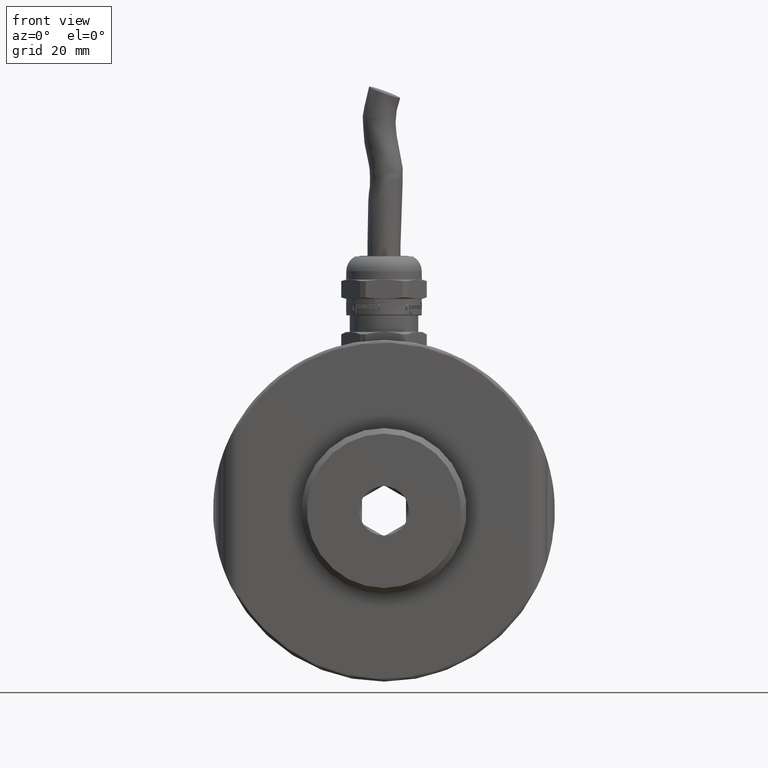
[diagram: clean part render]
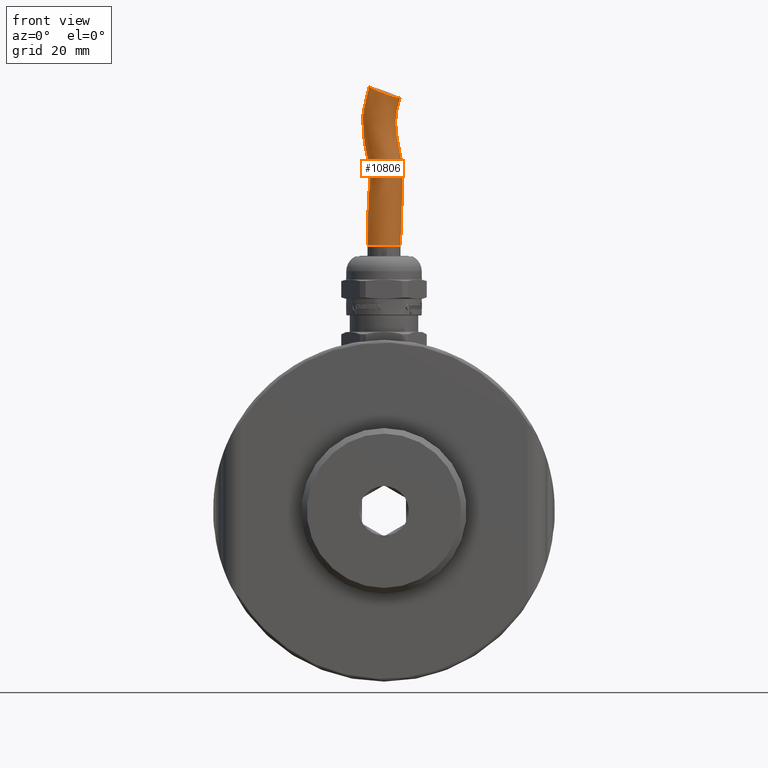
[diagram: same view with one face highlighted and labeled with its STEP entity id]
A machine part, front view. The second image highlights one B-rep face of the part: STEP entity #10806.
In plain terms, the highlighted face is a freeform B-spline surface patch.
Its self-contained STEP definition (entity closure, byte-faithful):
#36 = CARTESIAN_POINT ( 'NONE',  ( -2.903830114338532997, 24.46975126807920375, 55.14428429915418661 ) ) ;
#118 = CARTESIAN_POINT ( 'NONE',  ( 2.569365126468337479, 18.55810941434605610, 66.59545027553072316 ) ) ;
#282 = CARTESIAN_POINT ( 'NONE',  ( -3.339997727362602031, 12.54086365373877676, 65.63398565255626238 ) ) ;
#359 = CARTESIAN_POINT ( 'NONE',  ( -2.604847776709179996, 12.34979383744383519, 62.16778000623445166 ) ) ;
#556 = CARTESIAN_POINT ( 'NONE',  ( 0.000000000000000000, 18.49999999999999645, 48.14999999999999858 ) ) ;
#563 = CARTESIAN_POINT ( 'NONE',  ( 2.569365126468337479, 18.55810941434605610, 66.59545027553072316 ) ) ;
#906 = CARTESIAN_POINT ( 'NONE',  ( 3.008635434925755803, 18.49731427774121784, 50.92092628859793990 ) ) ;
#992 = CARTESIAN_POINT ( 'NONE',  ( -3.762828667064136212, 18.74861960645206693, 73.32154770902297969 ) ) ;
#1083 = CARTESIAN_POINT ( 'NONE',  ( -2.549080236822379497, 24.35222530343147085, 60.28802535873476387 ) ) ;
#1169 = CARTESIAN_POINT ( 'NONE',  ( -3.366178226718186561, 18.67905449595852119, 75.16794173144839419 ) ) ;
#1259 = CARTESIAN_POINT ( 'NONE',  ( -2.734500941808824415, 18.41536278443324903, 58.20234532871489108 ) ) ;
#1352 = CARTESIAN_POINT ( 'NONE',  ( -2.599531172335310725, 24.37028764862188979, 59.81173694803572261 ) ) ;
#1519 = CARTESIAN_POINT ( 'NONE',  ( -3.796639429380852970, 12.74876810475310762, 73.17733781232347212 ) ) ;
#1607 = CARTESIAN_POINT ( 'NONE',  ( 3.189169968719720583, 18.43996153861665732, 56.93532865758772488 ) ) ;
#1686 = CARTESIAN_POINT ( 'NONE',  ( 3.411834711053278735, 12.36579881338014175, 59.29110284103984441 ) ) ;
#1766 = CARTESIAN_POINT ( 'NONE',  ( 3.008605236201000732, 12.49732353844867916, 50.90315231865942991 ) ) ;
#2318 = CARTESIAN_POINT ( 'NONE',  ( -2.991234127564034395, 24.49727424418735211, 50.99558993031758547 ) ) ;
#2401 = CARTESIAN_POINT ( 'NONE',  ( -2.944319678989260503, 12.48251452659857463, 53.72342952421470130 ) ) ;
#2494 = CARTESIAN_POINT ( 'NONE',  ( -2.506780083267620807, 18.33223899249863820, 61.14287344650275458 ) ) ;
#2587 = CARTESIAN_POINT ( 'NONE',  ( -2.924389877176898800, 24.43456751985474895, 63.67405535838248198 ) ) ;
#2666 = CARTESIAN_POINT ( 'NONE',  ( -2.566771991178263601, 24.34445096690148347, 61.77493086334711592 ) ) ;
#2704 = CIRCLE ( 'NONE', #11115, 3.000000000000002220 ) ;
#2922 = CARTESIAN_POINT ( 'NONE',  ( 3.338390070067831061, 12.35563590209330620, 63.02906739840678796 ) ) ;
#2953 = CARTESIAN_POINT ( 'NONE',  ( 2.932955660895778305, 18.57912090347235790, 74.91012065054047753 ) ) ;
#3009 = CARTESIAN_POINT ( 'NONE',  ( -2.503732175934467730, 12.32991677934335684, 61.18469412890193126 ) ) ;
#3027 = DIRECTION ( 'NONE',  ( 0.9384804351222022500, 0.006333316636610015864, -0.3452743286044046012 ) ) ;
#3275 = CARTESIAN_POINT ( 'NONE',  ( 2.046174102872841516, 18.72565692792501579, 70.02266191948497465 ) ) ;
#3352 = AXIS2_PLACEMENT_3D ( 'NONE', #556, #15345, #12702 ) ;
#3631 = CARTESIAN_POINT ( 'NONE',  ( 3.360863145722507550, 18.38320763888510712, 59.01356141288122359 ) ) ;
#3713 = CARTESIAN_POINT ( 'NONE',  ( -3.000000000000000888, 12.50000000000000178, 49.50070937886976452 ) ) ;
#3796 = CARTESIAN_POINT ( 'NONE',  ( 2.189115715508525017, 24.67788480708955845, 68.64803177603981510 ) ) ;
#3896 = CARTESIAN_POINT ( 'NONE',  ( -2.797291783099526530, 24.43565372037398831, 57.40888809365709022 ) ) ;
#3981 = CARTESIAN_POINT ( 'NONE',  ( -3.235120701638280583, 24.51791793654945550, 64.89135188746271865 ) ) ;
#4063 = CARTESIAN_POINT ( 'NONE',  ( 3.054563772162934843, 18.48286530445611220, 53.62275385525193627 ) ) ;
#4235 = CARTESIAN_POINT ( 'NONE',  ( 3.000000000000000000, 18.49999999999999645, 48.14999999999999858 ) ) ;
#4317 = CARTESIAN_POINT ( 'NONE',  ( 3.420954118809231392, 18.36264572121881855, 59.50129635697686581 ) ) ;
#4403 = CARTESIAN_POINT ( 'NONE',  ( 2.046174102872841516, 18.72565692792501579, 70.02266191948497465 ) ) ;
#4689 = CARTESIAN_POINT ( 'NONE',  ( 3.420954118809231392, 18.36264572121881855, 59.50129635697686581 ) ) ;
#4772 = CARTESIAN_POINT ( 'NONE',  ( 3.092172212544396448, 18.47100507555014204, 54.87353016685425189 ) ) ;
#5042 = CARTESIAN_POINT ( 'NONE',  ( -3.000000000000000888, 12.50000000000000178, 48.14999999999999858 ) ) ;
#5130 = CARTESIAN_POINT ( 'NONE',  ( -2.697926949837439636, 18.54112100365269811, 76.98176662216690147 ) ) ;
#5214 = CARTESIAN_POINT ( 'NONE',  ( -2.991264326288790354, 18.49728350489599649, 50.97781596038026919 ) ) ;
#5309 = CARTESIAN_POINT ( 'NONE',  ( -2.999999999999999112, 24.49999999999999645, 48.14999999999999858 ) ) ;
#5329 = ORIENTED_EDGE ( 'NONE', *, *, #8449, .F. ) ;
#5335 =( BOUNDED_SURFACE ( )  B_SPLINE_SURFACE ( 3, 3, ( 
 ( #7584, #12965, #906, #11633, #4772, #10315, #15712, #3631, #4689, #7235, #15353, #12617, #563, #7320, #3275, #8636, #14032, #6436 ),
 ( #16063, #10482, #14463, #14737, #10675, #10764, #11728, #15796, #5391, #6611, #17111, #16145, #10395, #3796, #11904, #15881, #9163, #11817 ),
 ( #5309, #17201, #2318, #6704, #36, #3896, #9256, #1352, #1083, #17384, #2666, #2587, #3981, #9074, #12084, #13328, #8993, #7764 ),
 ( #6343, #14559, #5214, #8028, #9344, #14650, #1259, #11998, #13414, #2494, #13239, #7854, #14386, #7669, #13055, #992, #1169, #5130 ),
 ( #5042, #3713, #6524, #2401, #13148, #17291, #10581, #15977, #7946, #3009, #359, #5556, #282, #13750, #5633, #1519, #6957, #6791 ),
 ( #12422, #9513, #1766, #7119, #14915, #6869, #11008, #11085, #1686, #16483, #2922, #16315, #12339, #8369, #16400, #5711, #7038, #14830 ),
 ( #4235, #11177, #12502, #4063, #15084, #1607, #10930, #12175, #4317, #9600, #12256, #13833, #118, #9675, #4403, #14999, #9764, #15164 ) ),
 .UNSPECIFIED., .T., .F., .T. ) 
 B_SPLINE_SURFACE_WITH_KNOTS ( ( 4, 3, 4 ),
 ( 4, 2, 2, 2, 2, 2, 2, 2, 4 ),
 ( 0.000000000000000000, 0.5000000000000000000, 1.000000000000000000 ),
 ( 0.3998515034732242346, 0.4475514641980031794, 0.4952514249227820686, 0.5429513856475609579, 0.5906513463723398472, 0.6929885097792549686, 0.7953256731861699791, 0.8976628365930849895, 1.000000000000000000 ),
 .UNSPECIFIED. ) 
 GEOMETRIC_REPRESENTATION_ITEM ( )  RATIONAL_B_SPLINE_SURFACE ( (
 ( 1.000000000000000000, 1.000000000000000000, 1.000000000000000000, 1.000000000000000000, 1.000000000000000000, 1.000000000000000000, 1.000000000000000000, 1.000000000000000000, 1.000000000000000000, 1.000000000000000000, 1.000000000000000000, 1.000000000000000000, 1.000000000000000000, 1.000000000000000000, 1.000000000000000000, 1.000000000000000000, 1.000000000000000000, 1.000000000000000000),
 ( 0.3333333333333333703, 0.3333333333333333703, 0.3333333333333333703, 0.3333333333333333703, 0.3333333333333333703, 0.3333333333333333703, 0.3333333333333333703, 0.3333333333333333703, 0.3333333333333333703, 0.3333333333333333703, 0.3333333333333333703, 0.3333333333333333703, 0.3333333333333333703, 0.3333333333333333703, 0.3333333333333333703, 0.3333333333333333703, 0.3333333333333333703, 0.3333333333333333703),
 ( 0.3333333333333333703, 0.3333333333333333703, 0.3333333333333333703, 0.3333333333333333703, 0.3333333333333333703, 0.3333333333333333703, 0.3333333333333333703, 0.3333333333333333703, 0.3333333333333333703, 0.3333333333333333703, 0.3333333333333333703, 0.3333333333333333703, 0.3333333333333333703, 0.3333333333333333703, 0.3333333333333333703, 0.3333333333333333703, 0.3333333333333333703, 0.3333333333333333703),
 ( 1.000000000000000000, 1.000000000000000000, 1.000000000000000000, 1.000000000000000000, 1.000000000000000000, 1.000000000000000000, 1.000000000000000000, 1.000000000000000000, 1.000000000000000000, 1.000000000000000000, 1.000000000000000000, 1.000000000000000000, 1.000000000000000000, 1.000000000000000000, 1.000000000000000000, 1.000000000000000000, 1.000000000000000000, 1.000000000000000000),
 ( 0.3333333333333333703, 0.3333333333333333703, 0.3333333333333333703, 0.3333333333333333703, 0.3333333333333333703, 0.3333333333333333703, 0.3333333333333333703, 0.3333333333333333703, 0.3333333333333333703, 0.3333333333333333703, 0.3333333333333333703, 0.3333333333333333703, 0.3333333333333333703, 0.3333333333333333703, 0.3333333333333333703, 0.3333333333333333703, 0.3333333333333333703, 0.3333333333333333703),
 ( 0.3333333333333333703, 0.3333333333333333703, 0.3333333333333333703, 0.3333333333333333703, 0.3333333333333333703, 0.3333333333333333703, 0.3333333333333333703, 0.3333333333333333703, 0.3333333333333333703, 0.3333333333333333703, 0.3333333333333333703, 0.3333333333333333703, 0.3333333333333333703, 0.3333333333333333703, 0.3333333333333333703, 0.3333333333333333703, 0.3333333333333333703, 0.3333333333333333703),
 ( 1.000000000000000000, 1.000000000000000000, 1.000000000000000000, 1.000000000000000000, 1.000000000000000000, 1.000000000000000000, 1.000000000000000000, 1.000000000000000000, 1.000000000000000000, 1.000000000000000000, 1.000000000000000000, 1.000000000000000000, 1.000000000000000000, 1.000000000000000000, 1.000000000000000000, 1.000000000000000000, 1.000000000000000000, 1.000000000000000000) ) ) 
 REPRESENTATION_ITEM ( '' )  SURFACE ( )  );
#5391 = CARTESIAN_POINT ( 'NONE',  ( 3.430073526565184494, 24.35949262905750246, 59.71148987291388721 ) ) ;
#5556 = CARTESIAN_POINT ( 'NONE',  ( -3.023845120533942943, 12.45538292392453528, 64.39296074871980124 ) ) ;
#5633 = CARTESIAN_POINT ( 'NONE',  ( -3.995783267977215392, 12.75096577211925997, 69.92877726191048282 ) ) ;
#5711 = CARTESIAN_POINT ( 'NONE',  ( 2.155279033736602567, 12.72424745320662254, 72.21004561773966657 ) ) ;
#5868 = EDGE_CURVE ( 'NONE', #16354, #16354, #8679, .T. ) ;
#6147 = EDGE_LOOP ( 'NONE', ( #5329 ) ) ;
#6195 = ORIENTED_EDGE ( 'NONE', *, *, #5868, .T. ) ;
#6343 = CARTESIAN_POINT ( 'NONE',  ( -3.000000000000000000, 18.49999999999999645, 48.14999999999999858 ) ) ;
#6436 = CARTESIAN_POINT ( 'NONE',  ( 2.932955660895778749, 18.57912090347235790, 74.91012065054047753 ) ) ;
#6524 = CARTESIAN_POINT ( 'NONE',  ( -2.991294525013547645, 12.49729276560464619, 50.96004199044293870 ) ) ;
#6611 = CARTESIAN_POINT ( 'NONE',  ( 3.512942654392507080, 24.32220074713968216, 61.42794410546036943 ) ) ;
#6704 = CARTESIAN_POINT ( 'NONE',  ( -2.943286492275122068, 24.48218993442644376, 53.81620983001947423 ) ) ;
#6791 = CARTESIAN_POINT ( 'NONE',  ( -2.809811777926213949, 12.55645898189082388, 76.56787983749667603 ) ) ;
#6869 = CARTESIAN_POINT ( 'NONE',  ( 3.185846419142304597, 12.44101915547719805, 56.81994415220387395 ) ) ;
#6957 = CARTESIAN_POINT ( 'NONE',  ( -3.434251513213695262, 12.68534935051277657, 74.87297198699002365 ) ) ;
#7038 = CARTESIAN_POINT ( 'NONE',  ( 2.375043972078265231, 12.68652311656732579, 73.28558952653037295 ) ) ;
#7119 = CARTESIAN_POINT ( 'NONE',  ( 3.054047178805867180, 12.48302760054337135, 53.57636370235073997 ) ) ;
#7235 = CARTESIAN_POINT ( 'NONE',  ( 3.515990561725885311, 18.31987853398349131, 61.46976478785956743 ) ) ;
#7320 = CARTESIAN_POINT ( 'NONE',  ( 2.156220506812468685, 18.68344767817065488, 68.91018584947316583 ) ) ;
#7584 = CARTESIAN_POINT ( 'NONE',  ( 3.000000000000000000, 18.49999999999999645, 48.14999999999999858 ) ) ;
#7669 = CARTESIAN_POINT ( 'NONE',  ( -3.800388309089657302, 18.68490534966494820, 68.13590988253615421 ) ) ;
#7764 = CARTESIAN_POINT ( 'NONE',  ( -2.586042121748666212, 24.52578302541457234, 77.39565340683711270 ) ) ;
#7854 = CARTESIAN_POINT ( 'NONE',  ( -2.974117498855420649, 18.44497522188963856, 64.03350805355114517 ) ) ;
#7946 = CARTESIAN_POINT ( 'NONE',  ( -2.567319052334078755, 12.35853148775326638, 59.86763832686072817 ) ) ;
#8028 = CARTESIAN_POINT ( 'NONE',  ( -2.943803085632191063, 18.48235223051250387, 53.76981967711708421 ) ) ;
#8369 = CARTESIAN_POINT ( 'NONE',  ( 2.123325298116413240, 12.68901054925175842, 69.17233992290650235 ) ) ;
#8449 = EDGE_CURVE ( 'NONE', #15034, #15034, #2704, .T. ) ;
#8636 = CARTESIAN_POINT ( 'NONE',  ( 2.189089796053953929, 18.72409895490685727, 72.35425551443917414 ) ) ;
#8679 = CIRCLE ( 'NONE', #3352, 3.000000000000000000 ) ;
#8993 = CARTESIAN_POINT ( 'NONE',  ( -3.298104940222678305, 24.67275964140426936, 75.46291147590673631 ) ) ;
#9074 = CARTESIAN_POINT ( 'NONE',  ( -3.767493100393600081, 24.67934247858499575, 67.87375580910280348 ) ) ;
#9163 = CARTESIAN_POINT ( 'NONE',  ( 2.511190545065274282, 24.67393340747046793, 73.87552901542375139 ) ) ;
#9256 = CARTESIAN_POINT ( 'NONE',  ( -2.728769246174869600, 24.41352868903274143, 58.35294089402844264 ) ) ;
#9344 = CARTESIAN_POINT ( 'NONE',  ( -2.904787209720258723, 18.47005136819835514, 55.07921094193851985 ) ) ;
#9513 = CARTESIAN_POINT ( 'NONE',  ( 3.000000000000000444, 12.50000000000000178, 49.48834205202612679 ) ) ;
#9600 = CARTESIAN_POINT ( 'NONE',  ( 3.515990561725885311, 18.31987853398349131, 61.46976478785956743 ) ) ;
#9675 = CARTESIAN_POINT ( 'NONE',  ( 2.156220506812468685, 18.68344767817065488, 68.91018584947316583 ) ) ;
#9764 = CARTESIAN_POINT ( 'NONE',  ( 2.443117258571769312, 18.68022826201888975, 73.58055927097706217 ) ) ;
#9948 = FACE_OUTER_BOUND ( 'NONE', #15729, .T. ) ;
#10315 = CARTESIAN_POINT ( 'NONE',  ( 3.189169968719720583, 18.43996153861665732, 56.93532865758772488 ) ) ;
#10395 = CARTESIAN_POINT ( 'NONE',  ( 2.621803639330498203, 24.54663655575254566, 66.22413339298395840 ) ) ;
#10482 = CARTESIAN_POINT ( 'NONE',  ( 3.000000000000000444, 24.49999999999999645, 49.49605866883659644 ) ) ;
#10581 = CARTESIAN_POINT ( 'NONE',  ( -2.740232637442779673, 12.41719687983376019, 58.05174976340133952 ) ) ;
#10675 = CARTESIAN_POINT ( 'NONE',  ( 3.093129307926121285, 24.47070497543192147, 54.93860352406991865 ) ) ;
#10764 = CARTESIAN_POINT ( 'NONE',  ( 3.192493518297137456, 24.43890392175611836, 57.05071316297159001 ) ) ;
#10806 = ADVANCED_FACE ( 'NONE', ( #14297, #9948 ), #5335, .T. ) ;
#10930 = CARTESIAN_POINT ( 'NONE',  ( 3.247899437213467078, 18.42100132830213255, 57.73848266597708090 ) ) ;
#11008 = CARTESIAN_POINT ( 'NONE',  ( 3.242167741579513596, 12.42283542370206462, 57.58788710066352934 ) ) ;
#11085 = CARTESIAN_POINT ( 'NONE',  ( 3.350445349266506945, 12.38661017552730392, 58.81005114570806569 ) ) ;
#11115 = AXIS2_PLACEMENT_3D ( 'NONE', #16589, #15105, #3027 ) ;
#11177 = CARTESIAN_POINT ( 'NONE',  ( 3.000000000000000000, 18.49999999999999645, 49.49220036043136872 ) ) ;
#11633 = CARTESIAN_POINT ( 'NONE',  ( 3.054563772162934843, 18.48286530445611220, 53.62275385525193627 ) ) ;
#11728 = CARTESIAN_POINT ( 'NONE',  ( 3.253631132847421892, 24.41916723290221114, 57.88907823129064667 ) ) ;
#11817 = CARTESIAN_POINT ( 'NONE',  ( 3.044840488984553062, 24.56378292523423212, 75.32400743521067454 ) ) ;
#11904 = CARTESIAN_POINT ( 'NONE',  ( 2.062634758304694671, 24.72569908563179197, 69.88344676813920842 ) ) ;
#11998 = CARTESIAN_POINT ( 'NONE',  ( -2.609948968791311774, 18.37369018526349507, 59.60822668086255760 ) ) ;
#12084 = CARTESIAN_POINT ( 'NONE',  ( -3.962861957112234990, 24.75105008753535074, 69.65034695921899299 ) ) ;
#12175 = CARTESIAN_POINT ( 'NONE',  ( 3.360863145722507550, 18.38320763888510712, 59.01356141288122359 ) ) ;
#12256 = CARTESIAN_POINT ( 'NONE',  ( 3.357427962833288149, 18.35296446682110627, 62.83264282696107728 ) ) ;
#12339 = CARTESIAN_POINT ( 'NONE',  ( 2.516926613606178975, 12.56958227293957542, 66.96676715807748792 ) ) ;
#12422 = CARTESIAN_POINT ( 'NONE',  ( 3.000000000000000444, 12.50000000000000178, 48.14999999999999858 ) ) ;
#12502 = CARTESIAN_POINT ( 'NONE',  ( 3.008635434925755803, 18.49731427774121784, 50.92092628859793990 ) ) ;
#12617 = CARTESIAN_POINT ( 'NONE',  ( 2.875647273232909473, 18.47438203032307058, 65.39119491728872902 ) ) ;
#12702 = DIRECTION ( 'NONE',  ( 1.000000000000000000, 0.000000000000000000, 0.000000000000000000 ) ) ;
#12965 = CARTESIAN_POINT ( 'NONE',  ( 3.000000000000000000, 18.49999999999999645, 49.49220036043136872 ) ) ;
#13055 = CARTESIAN_POINT ( 'NONE',  ( -3.979322612544725413, 18.75100792982730269, 69.78956211056474501 ) ) ;
#13148 = CARTESIAN_POINT ( 'NONE',  ( -2.905744305101984892, 12.47035146831751184, 55.01413758472285309 ) ) ;
#13239 = CARTESIAN_POINT ( 'NONE',  ( -2.585809883943721132, 18.34712240217265489, 61.97135543479078024 ) ) ;
#13328 = CARTESIAN_POINT ( 'NONE',  ( -3.729017904747419898, 24.74847110815103335, 73.46575760572247304 ) ) ;
#13414 = CARTESIAN_POINT ( 'NONE',  ( -2.558199644578229570, 18.35537839559236417, 60.07783184279774957 ) ) ;
#13750 = CARTESIAN_POINT ( 'NONE',  ( -3.833283517785713190, 12.69046822074490599, 68.39806395596950495 ) ) ;
#13833 = CARTESIAN_POINT ( 'NONE',  ( 2.875647273232909473, 18.47438203032307058, 65.39119491728872902 ) ) ;
#14032 = CARTESIAN_POINT ( 'NONE',  ( 2.443117258571769312, 18.68022826201888975, 73.58055927097706217 ) ) ;
#14297 = FACE_OUTER_BOUND ( 'NONE', #6147, .T. ) ;
#14386 = CARTESIAN_POINT ( 'NONE',  ( -3.287559214500440863, 18.52939079514411347, 65.26266877000948341 ) ) ;
#14463 = CARTESIAN_POINT ( 'NONE',  ( 3.008665633650511761, 24.49730501703376717, 50.93870025853646410 ) ) ;
#14559 = CARTESIAN_POINT ( 'NONE',  ( -3.000000000000000000, 18.49999999999999645, 49.50456768727499224 ) ) ;
#14650 = CARTESIAN_POINT ( 'NONE',  ( -2.800615332676944735, 18.43671133723359645, 57.29350358827323220 ) ) ;
#14737 = CARTESIAN_POINT ( 'NONE',  ( 3.055080365520003838, 24.48270300836885127, 53.66914400815311836 ) ) ;
#14830 = CARTESIAN_POINT ( 'NONE',  ( 2.821070832807005768, 12.59445888171048544, 74.49623386587028051 ) ) ;
#14915 = CARTESIAN_POINT ( 'NONE',  ( 3.091215117162672499, 12.47130517566837149, 54.80845680963858513 ) ) ;
#14999 = CARTESIAN_POINT ( 'NONE',  ( 2.189089796053953929, 18.72409895490685727, 72.35425551443917414 ) ) ;
#15034 = VERTEX_POINT ( 'NONE', #2953 ) ;
#15084 = CARTESIAN_POINT ( 'NONE',  ( 3.092172212544396448, 18.47100507555014204, 54.87353016685425189 ) ) ;
#15105 = DIRECTION ( 'NONE',  ( 0.3448285729245222919, -0.07117593477799846746, 0.9359632693665470571 ) ) ;
#15164 = CARTESIAN_POINT ( 'NONE',  ( 2.932955660895778749, 18.57912090347235790, 74.91012065054047753 ) ) ;
#15345 = DIRECTION ( 'NONE',  ( 0.000000000000000000, 0.000000000000000000, 1.000000000000000000 ) ) ;
#15353 = CARTESIAN_POINT ( 'NONE',  ( 3.357427962833288149, 18.35296446682110627, 62.83264282696107728 ) ) ;
#15712 = CARTESIAN_POINT ( 'NONE',  ( 3.247899437213467078, 18.42100132830213255, 57.73848266597708090 ) ) ;
#15729 = EDGE_LOOP ( 'NONE', ( #6195 ) ) ;
#15796 = CARTESIAN_POINT ( 'NONE',  ( 3.371280942178508599, 24.37980510224291208, 59.21707168005438859 ) ) ;
#15881 = CARTESIAN_POINT ( 'NONE',  ( 2.222900558371307067, 24.72395045660709911, 72.49846541113866749 ) ) ;
#15977 = CARTESIAN_POINT ( 'NONE',  ( -2.620366765247313268, 12.37709272190510923, 59.40471641368938549 ) ) ;
#16063 = CARTESIAN_POINT ( 'NONE',  ( 3.000000000000000444, 24.49999999999999645, 48.14999999999999858 ) ) ;
#16145 = CARTESIAN_POINT ( 'NONE',  ( 2.925374894911431323, 24.46397432828920060, 65.03174222212210509 ) ) ;
#16268 = CARTESIAN_POINT ( 'NONE',  ( 3.000000000000000000, 18.49999999999999645, 48.14999999999999858 ) ) ;
#16315 = CARTESIAN_POINT ( 'NONE',  ( 2.825919651554388512, 12.48478973235694767, 65.75064761245535294 ) ) ;
#16354 = VERTEX_POINT ( 'NONE', #16268 ) ;
#16400 = CARTESIAN_POINT ( 'NONE',  ( 2.029713447440988361, 12.72561477021824672, 70.16187707083071246 ) ) ;
#16483 = CARTESIAN_POINT ( 'NONE',  ( 3.519038469059264429, 12.31755632082730934, 61.51158547025873702 ) ) ;
#16589 = CARTESIAN_POINT ( 'NONE',  ( 0.1175143555291692371, 18.56012095356252800, 75.94594363635368950 ) ) ;
#17111 = CARTESIAN_POINT ( 'NONE',  ( 3.376465855598745236, 24.35029303154891167, 62.63621825551536659 ) ) ;
#17201 = CARTESIAN_POINT ( 'NONE',  ( -2.999999999999999112, 24.49999999999999645, 49.50842599568021996 ) ) ;
#17291 = CARTESIAN_POINT ( 'NONE',  ( -2.803938882254362941, 12.43776895409321526, 57.17811908288937417 ) ) ;
#17384 = CARTESIAN_POINT ( 'NONE',  ( -2.509827990600773440, 24.33456120565392666, 61.10105276410357078 ) ) ;